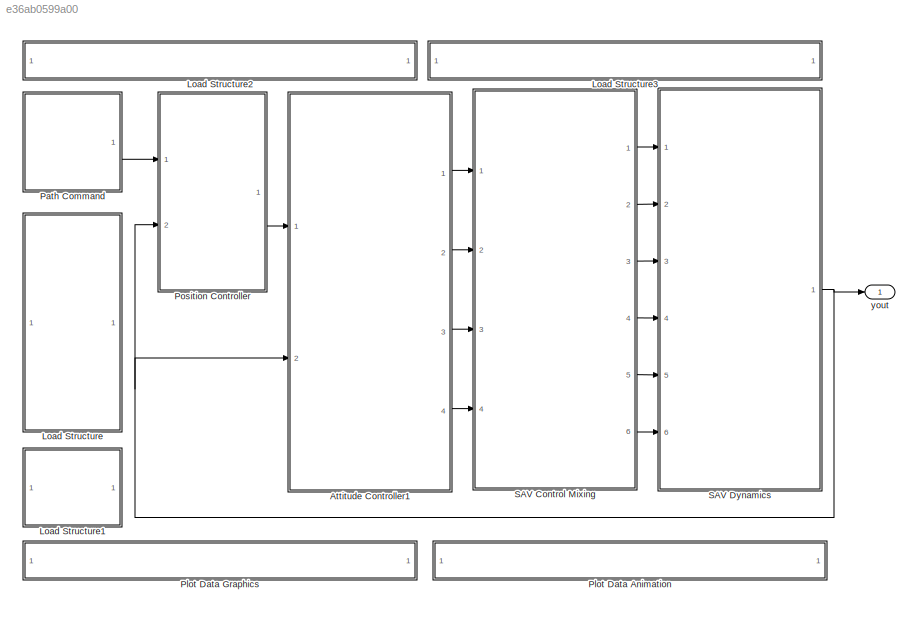
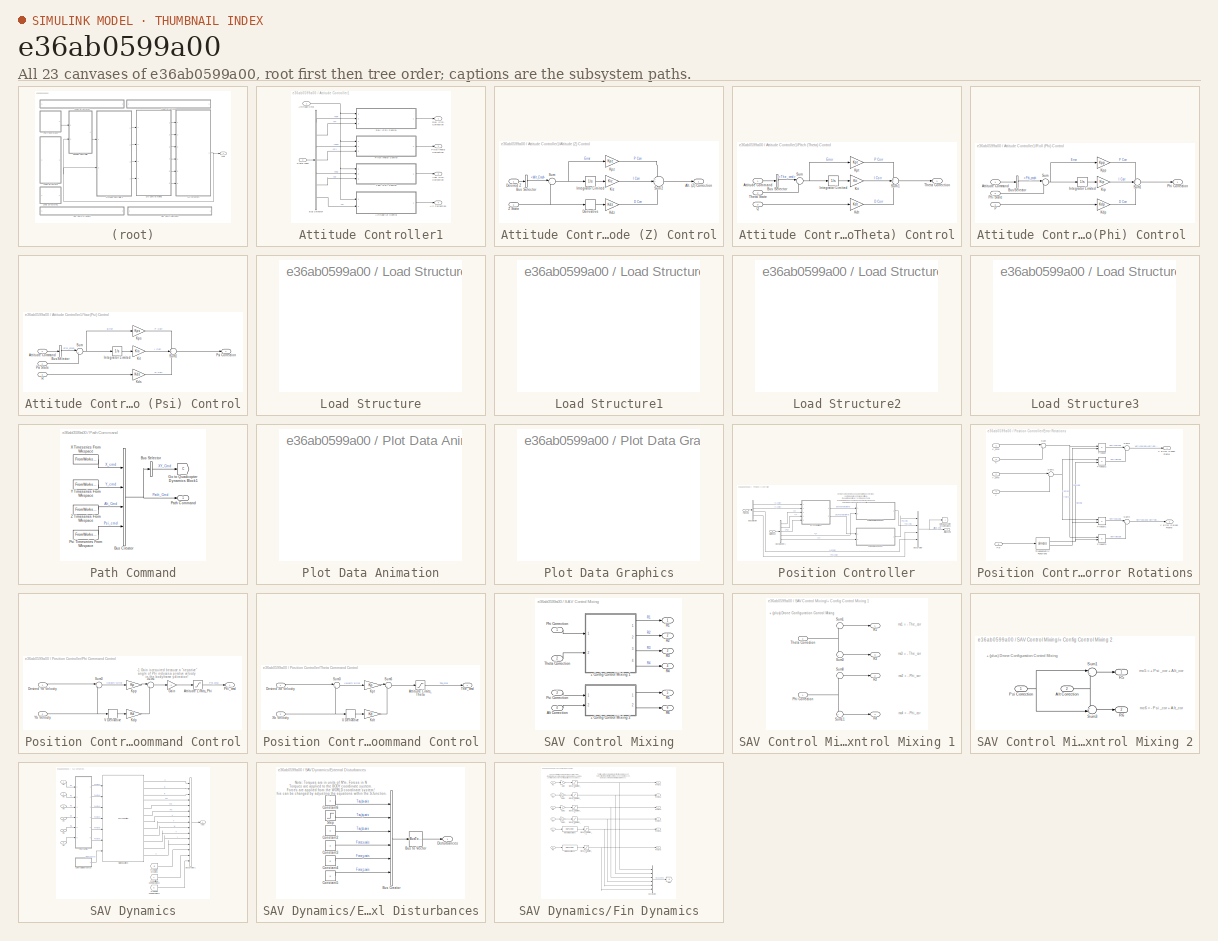
[diagram: thumbnail index - all 23 canvases of the model, root first then tree order]
MODEL slx_e36ab0599a00
KIND model
WORKSPACE source: MAT-file member
WORKSPACE MCOS: class17 (value not decoded)
BLOCK [SubSystem] Attitude Controller1
  Ports = [2, 4]
  RequestExecContextInheritance = off
BLOCK [Outport] Attitude Controller1/Alt Correction
  IconDisplay = Port number
  Port = 4
BLOCK [SubSystem] Attitude Controller1/Altitude (Z) Control
  Ports = [2, 1]
  RequestExecContextInheritance = off
BLOCK [Outport] Attitude Controller1/Altitude (Z) Control/Alt. (Z) Correction
  IconDisplay = Port number
BLOCK [BusSelector] Attitude Controller1/Altitude (Z) Control/Bus Selector
  OutputSignals = Alt_Cmd
  Ports = [1, 1]
BLOCK [Derivative] Attitude Controller1/Altitude (Z) Control/Derivative
BLOCK [Inport] Attitude Controller1/Altitude (Z) Control/Desired Z
  IconDisplay = Port number
BLOCK [Integrator] Attitude Controller1/Altitude (Z) Control/Integrator Limited
  LowerSaturationLimit = LSat
  Ports = [1, 1]
  UpperSaturationLimit = USat
BLOCK [Gain] Attitude Controller1/Altitude (Z) Control/Kdz
  Gain = Kdz
  OutDataTypeStr = Inherit: Inherit via internal rule
  ParamDataTypeStr = Inherit: Inherit via internal rule
  SaturateOnIntegerOverflow = off
BLOCK [Gain] Attitude Controller1/Altitude (Z) Control/Kiz
  Gain = Kiz
  OutDataTypeStr = Inherit: Inherit via internal rule
  ParamDataTypeStr = Inherit: Inherit via internal rule
  SaturateOnIntegerOverflow = off
BLOCK [Gain] Attitude Controller1/Altitude (Z) Control/Kpz
  Gain = Kpz
  OutDataTypeStr = Inherit: Inherit via internal rule
  ParamDataTypeStr = Inherit: Inherit via internal rule
  SaturateOnIntegerOverflow = off
BLOCK [Sum] Attitude Controller1/Altitude (Z) Control/Sum
  IconShape = round
  InputSameDT = off
  Inputs = |+-
  OutDataTypeStr = Inherit: Inherit via internal rule
  Ports = [2, 1]
  SaturateOnIntegerOverflow = off
BLOCK [Sum] Attitude Controller1/Altitude (Z) Control/Sum2
  IconShape = round
  InputSameDT = off
  Inputs = ++-
  OutDataTypeStr = Inherit: Inherit via internal rule
  Ports = [3, 1]
  SaturateOnIntegerOverflow = off
BLOCK [Inport] Attitude Controller1/Altitude (Z) Control/Z State
  IconDisplay = Port number
  Port = 2
BLOCK [Inport] Attitude Controller1/Attitude Cmd
  IconDisplay = Port number
BLOCK [BusSelector] Attitude Controller1/Bus Selector
  OutputSignals = Phi,P,The,Q,Psi,R,Z
  Ports = [1, 7]
BLOCK [SubSystem] Attitude Controller1/Pitch (Theta) Control
  Ports = [3, 1]
  RequestExecContextInheritance = off
BLOCK [Inport] Attitude Controller1/Pitch (Theta) Control/Attitude Command
  IconDisplay = Port number
BLOCK [BusSelector] Attitude Controller1/Pitch (Theta) Control/Bus Selector
  OutputSignals = The_cmd
  Ports = [1, 1]
BLOCK [Integrator] Attitude Controller1/Pitch (Theta) Control/Integrator Limited
  LowerSaturationLimit = LSat
  Ports = [1, 1]
  UpperSaturationLimit = USat
BLOCK [Gain] Attitude Controller1/Pitch (Theta) Control/Kdt
  Gain = Kdt
  OutDataTypeStr = Inherit: Inherit via internal rule
  ParamDataTypeStr = Inherit: Inherit via internal rule
  SaturateOnIntegerOverflow = off
BLOCK [Gain] Attitude Controller1/Pitch (Theta) Control/Kit
  Gain = Kit
  OutDataTypeStr = Inherit: Inherit via internal rule
  ParamDataTypeStr = Inherit: Inherit via internal rule
  SaturateOnIntegerOverflow = off
BLOCK [Gain] Attitude Controller1/Pitch (Theta) Control/Kpt
  Gain = Kpt
  OutDataTypeStr = Inherit: Inherit via internal rule
  ParamDataTypeStr = Inherit: Inherit via internal rule
  SaturateOnIntegerOverflow = off
BLOCK [Inport] Attitude Controller1/Pitch (Theta) Control/Q
  IconDisplay = Port number
  Port = 3
BLOCK [Sum] Attitude Controller1/Pitch (Theta) Control/Sum
  IconShape = round
  InputSameDT = off
  Inputs = |+-
  OutDataTypeStr = Inherit: Inherit via internal rule
  Ports = [2, 1]
  SaturateOnIntegerOverflow = off
BLOCK [Sum] Attitude Controller1/Pitch (Theta) Control/Sum1
  IconShape = round
  InputSameDT = off
  Inputs = ++-
  OutDataTypeStr = Inherit: Inherit via internal rule
  Ports = [3, 1]
  SaturateOnIntegerOverflow = off
BLOCK [Outport] Attitude Controller1/Pitch (Theta) Control/Theta Correction
  IconDisplay = Port number
BLOCK [Inport] Attitude Controller1/Pitch (Theta) Control/Theta State
  IconDisplay = Port number
  Port = 2
BLOCK [Outport] Attitude Controller1/Pitch (Theta) Correction
  IconDisplay = Port number
  Port = 2
BLOCK [SubSystem] Attitude Controller1/Roll (Phi) Control 
  Ports = [3, 1]
  RequestExecContextInheritance = off
BLOCK [Inport] Attitude Controller1/Roll (Phi) Control /Attitude Command 
  IconDisplay = Port number
BLOCK [BusSelector] Attitude Controller1/Roll (Phi) Control /Bus Selector
  OutputSignals = Phi_cmd
  Ports = [1, 1]
BLOCK [Integrator] Attitude Controller1/Roll (Phi) Control /Integrator Limited
  LowerSaturationLimit = LSat
  Ports = [1, 1]
  UpperSaturationLimit = USat
BLOCK [Gain] Attitude Controller1/Roll (Phi) Control /Kdp
  Gain = Kdp
  OutDataTypeStr = Inherit: Inherit via internal rule
  ParamDataTypeStr = Inherit: Inherit via internal rule
  SaturateOnIntegerOverflow = off
BLOCK [Gain] Attitude Controller1/Roll (Phi) Control /Kip
  Gain = Kip
  OutDataTypeStr = Inherit: Inherit via internal rule
  ParamDataTypeStr = Inherit: Inherit via internal rule
  SaturateOnIntegerOverflow = off
BLOCK [Gain] Attitude Controller1/Roll (Phi) Control /Kpp
  Gain = Kpp
  OutDataTypeStr = Inherit: Inherit via internal rule
  ParamDataTypeStr = Inherit: Inherit via internal rule
  SaturateOnIntegerOverflow = off
BLOCK [Inport] Attitude Controller1/Roll (Phi) Control /P
  IconDisplay = Port number
  Port = 3
BLOCK [Outport] Attitude Controller1/Roll (Phi) Control /Phi Correction
  IconDisplay = Port number
BLOCK [Inport] Attitude Controller1/Roll (Phi) Control /Phi State
  IconDisplay = Port number
  Port = 2
BLOCK [Sum] Attitude Controller1/Roll (Phi) Control /Sum
  IconShape = round
  InputSameDT = off
  Inputs = |+-
  OutDataTypeStr = Inherit: Inherit via internal rule
  Ports = [2, 1]
  SaturateOnIntegerOverflow = off
BLOCK [Sum] Attitude Controller1/Roll (Phi) Control /Sum1
  IconShape = round
  InputSameDT = off
  Inputs = ++-
  OutDataTypeStr = Inherit: Inherit via internal rule
  Ports = [3, 1]
  SaturateOnIntegerOverflow = off
BLOCK [Outport] Attitude Controller1/Roll (Phi) Correction
  IconDisplay = Port number
BLOCK [Inport] Attitude Controller1/State Input
  IconDisplay = Port number
  Port = 2
BLOCK [SubSystem] Attitude Controller1/Yaw (Psi) Control
  Ports = [3, 1]
  RequestExecContextInheritance = off
BLOCK [Inport] Attitude Controller1/Yaw (Psi) Control/Attitude Command
  IconDisplay = Port number
BLOCK [BusSelector] Attitude Controller1/Yaw (Psi) Control/Bus Selector
  OutputSignals = Psi_cmd
  Ports = [1, 1]
BLOCK [Integrator] Attitude Controller1/Yaw (Psi) Control/Integrator Limited
  LowerSaturationLimit = LSat
  Ports = [1, 1]
  UpperSaturationLimit = USat
BLOCK [Gain] Attitude Controller1/Yaw (Psi) Control/Kds
  Gain = Kds
  OutDataTypeStr = Inherit: Inherit via internal rule
  ParamDataTypeStr = Inherit: Inherit via internal rule
  SaturateOnIntegerOverflow = off
BLOCK [Gain] Attitude Controller1/Yaw (Psi) Control/Kit
  Gain = Kis
  OutDataTypeStr = Inherit: Inherit via internal rule
  ParamDataTypeStr = Inherit: Inherit via internal rule
  SaturateOnIntegerOverflow = off
BLOCK [Gain] Attitude Controller1/Yaw (Psi) Control/Kps
  Gain = Kps
  OutDataTypeStr = Inherit: Inherit via internal rule
  ParamDataTypeStr = Inherit: Inherit via internal rule
  SaturateOnIntegerOverflow = off
BLOCK [Outport] Attitude Controller1/Yaw (Psi) Control/Psi Correction
  IconDisplay = Port number
BLOCK [Inport] Attitude Controller1/Yaw (Psi) Control/Psi State
  IconDisplay = Port number
  Port = 2
BLOCK [Inport] Attitude Controller1/Yaw (Psi) Control/R
  IconDisplay = Port number
  Port = 3
BLOCK [Sum] Attitude Controller1/Yaw (Psi) Control/Sum
  IconShape = round
  InputSameDT = off
  Inputs = |+-
  OutDataTypeStr = Inherit: Inherit via internal rule
  Ports = [2, 1]
  SaturateOnIntegerOverflow = off
BLOCK [Sum] Attitude Controller1/Yaw (Psi) Control/Sum1
  IconShape = round
  InputSameDT = off
  Inputs = ++-
  OutDataTypeStr = Inherit: Inherit via internal rule
  Ports = [3, 1]
  SaturateOnIntegerOverflow = off
BLOCK [Outport] Attitude Controller1/Yaw (Psi) Correction
  IconDisplay = Port number
  Port = 3
BLOCK [SubSystem] Load Structure
  OpenFcn = uiopen('load')                                                        \nif ((exist('IC')==1) && (exist('quadModel')==1) && (exist('path')==1))\nset_param(bdroot, 'SimulationCommand', 'update')                      \nend
  Ports = []
  RequestExecContextInheritance = off
  ShowPortLabels = FromPortBlockName
BLOCK [SubSystem] Load Structure1
  OpenFcn = if (exist('IC')==1 && exist('quadModel')==1 && exist('yout') && exist('tout'))\nsaveSimResults()                                                              \nelse                                                                          \nmsgbox('No Data To Save!')                                                    \nend
  Ports = []
  RequestExecContextInheritance = off
  ShowPortLabels = FromPortBlockName
BLOCK [SubSystem] Load Structure2
  OpenFcn = if exist('GUI_Modeling') == 2,                                \nrun('GUI_Modeling')                                           \n                                                              \nelse                                                          \n                                                              \nmsgbox('The desired GUI must be first added to MATLABs path.')\n                      ...<+44ch>
  Ports = []
  RequestExecContextInheritance = off
  ShowPortLabels = none
BLOCK [SubSystem] Load Structure3
  OpenFcn = if exist('GUI_IC') == 2,                                      \nrun('GUI_IC')                                                 \n                                                              \nelse                                                          \n                                                              \nmsgbox('The desired GUI must be first added to MATLABs path.')\n                      ...<+44ch>
  Ports = []
  RequestExecContextInheritance = off
  ShowPortLabels = none
BLOCK [SubSystem] Path Command
  Ports = [0, 1]
  RequestExecContextInheritance = off
BLOCK [BusCreator] Path Command/Bus Creator
  DisplayOption = bar
  Ports = [4, 1]
BLOCK [BusSelector] Path Command/Bus Selector
  OutputAsBus = on
  OutputSignals = X_cmd,Y_cmd
  Ports = [1, 1]
BLOCK [Goto] Path Command/Go to Quadcopter Dynamics Block1
  GotoTag = C
  TagVisibility = global
BLOCK [Outport] Path Command/Path Command 
  IconDisplay = Port number
BLOCK [FromWorkspace] Path Command/Psi Timeseries From Wkspace
  OutputAfterFinalValue = Holding final value
  SampleTime = 0
  VariableName = path.psi
  ZeroCross = on
BLOCK [FromWorkspace] Path Command/X Timeseries From Wkspace
  OutputAfterFinalValue = Holding final value
  SampleTime = 0
  VariableName = path.x
  ZeroCross = on
BLOCK [FromWorkspace] Path Command/Y Timeseries From Wkspace
  OutputAfterFinalValue = Holding final value
  SampleTime = 0
  VariableName = path.y
  ZeroCross = on
BLOCK [FromWorkspace] Path Command/Z Timeseries From Wkspace
  OutputAfterFinalValue = Holding final value
  SampleTime = 0
  VariableName = path.z
  ZeroCross = on
BLOCK [SubSystem] Plot Data Animation
  OpenFcn = if exist('droneAnim4') == 2,                                                                                                                 \n    if exist('yout')                                                                                                                        \n	run('droneAnim4');                                                                                                  ...<+592ch>
  Ports = []
  RequestExecContextInheritance = off
  ShowPortLabels = FromPortBlockName
BLOCK [SubSystem] Plot Data Graphics
  OpenFcn = if exist('yout')                                            \nyout = evalin('base', 'yout');                              \ntout = evalin('base', 'tout');                              \ndronePlots(yout, tout)                                       \nelse                                                        \nmsgbox('Simulation must be run before data can be plotted.')\nend
  Ports = []
  RequestExecContextInheritance = off
  ShowPortLabels = FromPortBlockName
BLOCK [SubSystem] Position Controller
  Ports = [2, 1]
  RequestExecContextInheritance = off
BLOCK [Outport] Position Controller/Attitude Cmd
  IconDisplay = Port number
BLOCK [BusCreator] Position Controller/Bus Creator
  DisplayOption = bar
  Ports = [4, 1]
BLOCK [BusSelector] Position Controller/Bus Selector
  OutputSignals = X_cmd,Y_cmd,Alt_Cmd,Psi_cmd
  Ports = [1, 4]
BLOCK [BusSelector] Position Controller/Bus Selector1
  OutputSignals = X,Y,Psi,U,V
  Ports = [1, 5]
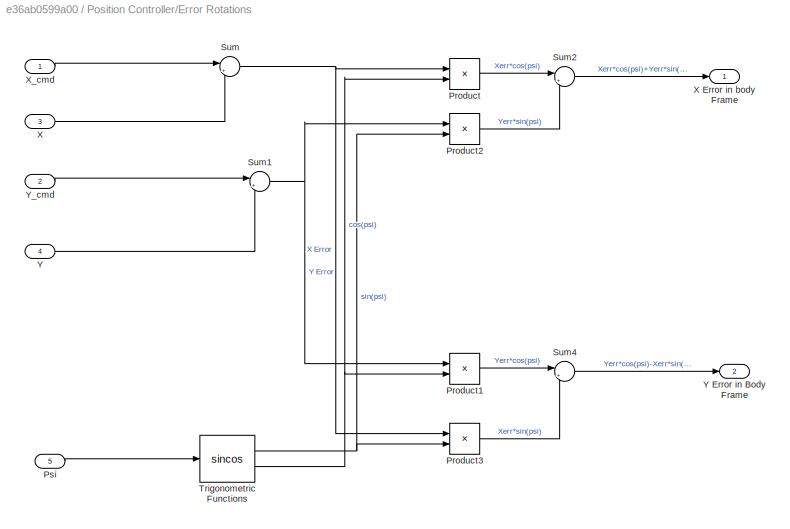
BLOCK [SubSystem] Position Controller/Error Rotations
  Ports = [5, 2]
  RequestExecContextInheritance = off
BLOCK [Product] Position Controller/Error Rotations/Product
  InputSameDT = off
  OutDataTypeStr = Inherit: Inherit via internal rule
  Ports = [2, 1]
  RndMeth = Floor
  SaturateOnIntegerOverflow = off
BLOCK [Product] Position Controller/Error Rotations/Product1
  InputSameDT = off
  OutDataTypeStr = Inherit: Inherit via internal rule
  Ports = [2, 1]
  RndMeth = Floor
  SaturateOnIntegerOverflow = off
BLOCK [Product] Position Controller/Error Rotations/Product2
  InputSameDT = off
  OutDataTypeStr = Inherit: Inherit via internal rule
  Ports = [2, 1]
  RndMeth = Floor
  SaturateOnIntegerOverflow = off
BLOCK [Product] Position Controller/Error Rotations/Product3
  InputSameDT = off
  OutDataTypeStr = Inherit: Inherit via internal rule
  Ports = [2, 1]
  RndMeth = Floor
  SaturateOnIntegerOverflow = off
BLOCK [Inport] Position Controller/Error Rotations/Psi
  IconDisplay = Port number
  Port = 5
BLOCK [Sum] Position Controller/Error Rotations/Sum
  IconShape = round
  InputSameDT = off
  Inputs = |+-
  OutDataTypeStr = Inherit: Inherit via internal rule
  Ports = [2, 1]
  SaturateOnIntegerOverflow = off
BLOCK [Sum] Position Controller/Error Rotations/Sum1
  IconShape = round
  InputSameDT = off
  Inputs = |+-
  OutDataTypeStr = Inherit: Inherit via internal rule
  Ports = [2, 1]
  SaturateOnIntegerOverflow = off
BLOCK [Sum] Position Controller/Error Rotations/Sum2
  IconShape = round
  InputSameDT = off
  Inputs = |++
  OutDataTypeStr = Inherit: Inherit via internal rule
  Ports = [2, 1]
  SaturateOnIntegerOverflow = off
BLOCK [Sum] Position Controller/Error Rotations/Sum4
  IconShape = round
  InputSameDT = off
  Inputs = |+-
  OutDataTypeStr = Inherit: Inherit via internal rule
  Ports = [2, 1]
  SaturateOnIntegerOverflow = off
BLOCK [Trigonometry] Position Controller/Error Rotations/Trigonometric Functions
  Operator = sincos
  Ports = [1, 2]
BLOCK [Inport] Position Controller/Error Rotations/X
  IconDisplay = Port number
  Port = 3
BLOCK [Outport] Position Controller/Error Rotations/X Error in body Frame
  IconDisplay = Port number
BLOCK [Inport] Position Controller/Error Rotations/X_cmd
  IconDisplay = Port number
BLOCK [Inport] Position Controller/Error Rotations/Y
  IconDisplay = Port number
  Port = 4
BLOCK [Outport] Position Controller/Error Rotations/Y Error in Body Frame
  IconDisplay = Port number
  Port = 2
BLOCK [Inport] Position Controller/Error Rotations/Y_cmd
  IconDisplay = Port number
  Port = 2
BLOCK [Goto] Position Controller/Goto Quadcopter Dynamics Block
  TagVisibility = global
BLOCK [Inport] Position Controller/Path Cmd
  IconDisplay = Port number
BLOCK [SubSystem] Position Controller/Phi Command Control
  Ports = [2, 1]
  RequestExecContextInheritance = off
BLOCK [Saturate] Position Controller/Phi Command Control/Attitude Limits_Phi
  InputPortMap = u0
  LowerLimit = -ASat
  Ports = [1, 1]
  UpperLimit = ASat
BLOCK [Inport] Position Controller/Phi Command Control/Desired Yb Velocity
  IconDisplay = Port number
BLOCK [Gain] Position Controller/Phi Command Control/Gain
  Gain = -1
  OutDataTypeStr = Inherit: Inherit via internal rule
  ParamDataTypeStr = Inherit: Inherit via internal rule
  SaturateOnIntegerOverflow = off
BLOCK [Gain] Position Controller/Phi Command Control/Kdp
  Gain = Kd
  OutDataTypeStr = Inherit: Inherit via internal rule
  ParamDataTypeStr = Inherit: Inherit via internal rule
  SaturateOnIntegerOverflow = off
BLOCK [Gain] Position Controller/Phi Command Control/Kpp
  Gain = Kp
  OutDataTypeStr = Inherit: Inherit via internal rule
  ParamDataTypeStr = Inherit: Inherit via internal rule
  SaturateOnIntegerOverflow = off
BLOCK [Outport] Position Controller/Phi Command Control/Phi_cmd
  IconDisplay = Port number
BLOCK [Sum] Position Controller/Phi Command Control/Sum3
  IconShape = round
  InputSameDT = off
  Inputs = |+-
  OutDataTypeStr = Inherit: Inherit via internal rule
  Ports = [2, 1]
  SaturateOnIntegerOverflow = off
BLOCK [Sum] Position Controller/Phi Command Control/Sum6
  IconShape = round
  InputSameDT = off
  Inputs = |+-
  OutDataTypeStr = Inherit: Inherit via internal rule
  Ports = [2, 1]
  SaturateOnIntegerOverflow = off
BLOCK [Derivative] Position Controller/Phi Command Control/V Derivative
BLOCK [Inport] Position Controller/Phi Command Control/Yb Velocity
  IconDisplay = Port number
  Port = 2
BLOCK [Inport] Position Controller/State Input
  IconDisplay = Port number
  Port = 2
BLOCK [SubSystem] Position Controller/Theta Command Control
  Ports = [2, 1]
  RequestExecContextInheritance = off
BLOCK [Saturate] Position Controller/Theta Command Control/Attitude Limits_Theta
  InputPortMap = u0
  LowerLimit = -ASat
  Ports = [1, 1]
  UpperLimit = ASat
BLOCK [Inport] Position Controller/Theta Command Control/Desired Xb Velocity
  IconDisplay = Port number
BLOCK [Gain] Position Controller/Theta Command Control/Kdt
  Gain = Kd
  OutDataTypeStr = Inherit: Inherit via internal rule
  ParamDataTypeStr = Inherit: Inherit via internal rule
  SaturateOnIntegerOverflow = off
BLOCK [Gain] Position Controller/Theta Command Control/Kpt
  Gain = Kp
  OutDataTypeStr = Inherit: Inherit via internal rule
  ParamDataTypeStr = Inherit: Inherit via internal rule
  SaturateOnIntegerOverflow = off
BLOCK [Sum] Position Controller/Theta Command Control/Sum3
  IconShape = round
  InputSameDT = off
  Inputs = |+-
  OutDataTypeStr = Inherit: Inherit via internal rule
  Ports = [2, 1]
  SaturateOnIntegerOverflow = off
BLOCK [Sum] Position Controller/Theta Command Control/Sum6
  IconShape = round
  InputSameDT = off
  Inputs = |+-
  OutDataTypeStr = Inherit: Inherit via internal rule
  Ports = [2, 1]
  SaturateOnIntegerOverflow = off
BLOCK [Outport] Position Controller/Theta Command Control/The_cmd
  IconDisplay = Port number
BLOCK [Derivative] Position Controller/Theta Command Control/U Derivative
BLOCK [Inport] Position Controller/Theta Command Control/Xb Velocity
  IconDisplay = Port number
  Port = 2
BLOCK [SubSystem] SAV Control Mixing
  Ports = [4, 6]
  RequestExecContextInheritance = off
BLOCK [SubSystem] SAV Control Mixing/+ Config Control Mixing 1
  Ports = [2, 4]
  RequestExecContextInheritance = off
BLOCK [Inport] SAV Control Mixing/+ Config Control Mixing 1/Phi Correction
  IconDisplay = Port number
BLOCK [Outport] SAV Control Mixing/+ Config Control Mixing 1/R1
  IconDisplay = Port number
BLOCK [Outport] SAV Control Mixing/+ Config Control Mixing 1/R2
  IconDisplay = Port number
  Port = 2
BLOCK [Outport] SAV Control Mixing/+ Config Control Mixing 1/R3
  IconDisplay = Port number
  Port = 3
BLOCK [Outport] SAV Control Mixing/+ Config Control Mixing 1/R4
  IconDisplay = Port number
  Port = 4
BLOCK [Sum] SAV Control Mixing/+ Config Control Mixing 1/Sum1
  IconShape = round
  InputSameDT = off
  Inputs = |-
  OutDataTypeStr = Inherit: Inherit via internal rule
  Ports = [1, 1]
  SaturateOnIntegerOverflow = off
BLOCK [Sum] SAV Control Mixing/+ Config Control Mixing 1/Sum11
  IconShape = round
  InputSameDT = off
  Inputs = -|
  OutDataTypeStr = Inherit: Inherit via internal rule
  Ports = [1, 1]
  SaturateOnIntegerOverflow = off
BLOCK [Sum] SAV Control Mixing/+ Config Control Mixing 1/Sum3
  IconShape = round
  InputSameDT = off
  Inputs = -|
  OutDataTypeStr = Inherit: Inherit via internal rule
  Ports = [1, 1]
  SaturateOnIntegerOverflow = off
BLOCK [Sum] SAV Control Mixing/+ Config Control Mixing 1/Sum8
  IconShape = round
  InputSameDT = off
  Inputs = |-
  OutDataTypeStr = Inherit: Inherit via internal rule
  Ports = [1, 1]
  SaturateOnIntegerOverflow = off
BLOCK [Inport] SAV Control Mixing/+ Config Control Mixing 1/Theta Correction
  IconDisplay = Port number
  Port = 2
BLOCK [SubSystem] SAV Control Mixing/+ Config Control Mixing 2
  Ports = [2, 2]
  RequestExecContextInheritance = off
BLOCK [Inport] SAV Control Mixing/+ Config Control Mixing 2/Alt Correction
  IconDisplay = Port number
  Port = 2
BLOCK [Inport] SAV Control Mixing/+ Config Control Mixing 2/Psi Correction
  IconDisplay = Port number
BLOCK [Outport] SAV Control Mixing/+ Config Control Mixing 2/R5
  IconDisplay = Port number
BLOCK [Outport] SAV Control Mixing/+ Config Control Mixing 2/R6
  IconDisplay = Port number
  Port = 2
BLOCK [Sum] SAV Control Mixing/+ Config Control Mixing 2/Sum1
  IconShape = round
  InputSameDT = off
  Inputs = |++
  OutDataTypeStr = Inherit: Inherit via internal rule
  Ports = [2, 1]
  SaturateOnIntegerOverflow = off
BLOCK [Sum] SAV Control Mixing/+ Config Control Mixing 2/Sum3
  IconShape = round
  InputSameDT = off
  Inputs = +-|
  OutDataTypeStr = Inherit: Inherit via internal rule
  Ports = [2, 1]
  SaturateOnIntegerOverflow = off
BLOCK [Inport] SAV Control Mixing/Alt Correction
  IconDisplay = Port number
  Port = 4
BLOCK [Inport] SAV Control Mixing/Phi Correction
  IconDisplay = Port number
BLOCK [Inport] SAV Control Mixing/Psi Correction
  IconDisplay = Port number
  Port = 3
BLOCK [Outport] SAV Control Mixing/R1
  IconDisplay = Port number
BLOCK [Outport] SAV Control Mixing/R2
  IconDisplay = Port number
  Port = 2
BLOCK [Outport] SAV Control Mixing/R3
  IconDisplay = Port number
  Port = 3
BLOCK [Outport] SAV Control Mixing/R4
  IconDisplay = Port number
  Port = 4
BLOCK [Outport] SAV Control Mixing/R5
  IconDisplay = Port number
  Port = 5
BLOCK [Outport] SAV Control Mixing/R6
  IconDisplay = Port number
  Port = 6
BLOCK [Inport] SAV Control Mixing/Theta Correction
  IconDisplay = Port number
  Port = 2
BLOCK [SubSystem] SAV Dynamics
  Ports = [6, 1]
  RequestExecContextInheritance = off
BLOCK [BusCreator] SAV Dynamics/Bus Creator1
  DisplayOption = bar
  Inputs = 'P','Q','R','Phi','The','Psi','U','V','W','X','Y','Z','mc and RPM','Attitude_Cmd','XY_Cmd'
  Ports = [15, 1]
BLOCK [SubSystem] SAV Dynamics/External Disturbances
  Ports = [0, 1]
  RequestExecContextInheritance = off
BLOCK [BusCreator] SAV Dynamics/External Disturbances/Bus Creator
  DisplayOption = bar
  Inputs = 6
  Ports = [6, 1]
BLOCK [BusToVector] SAV Dynamics/External Disturbances/Bus to Vector
BLOCK [Constant] SAV Dynamics/External Disturbances/Constant2
  Value = 0
BLOCK [Constant] SAV Dynamics/External Disturbances/Constant3
  Value = 0
BLOCK [Constant] SAV Dynamics/External Disturbances/Constant4
  Value = 0
BLOCK [Constant] SAV Dynamics/External Disturbances/Constant5
  Value = 0
BLOCK [Constant] SAV Dynamics/External Disturbances/Constant6
  Value = 0
BLOCK [Outport] SAV Dynamics/External Disturbances/Disturbances 
  IconDisplay = Port number
BLOCK [Step] SAV Dynamics/External Disturbances/Step
  After = 0
  SampleTime = 0
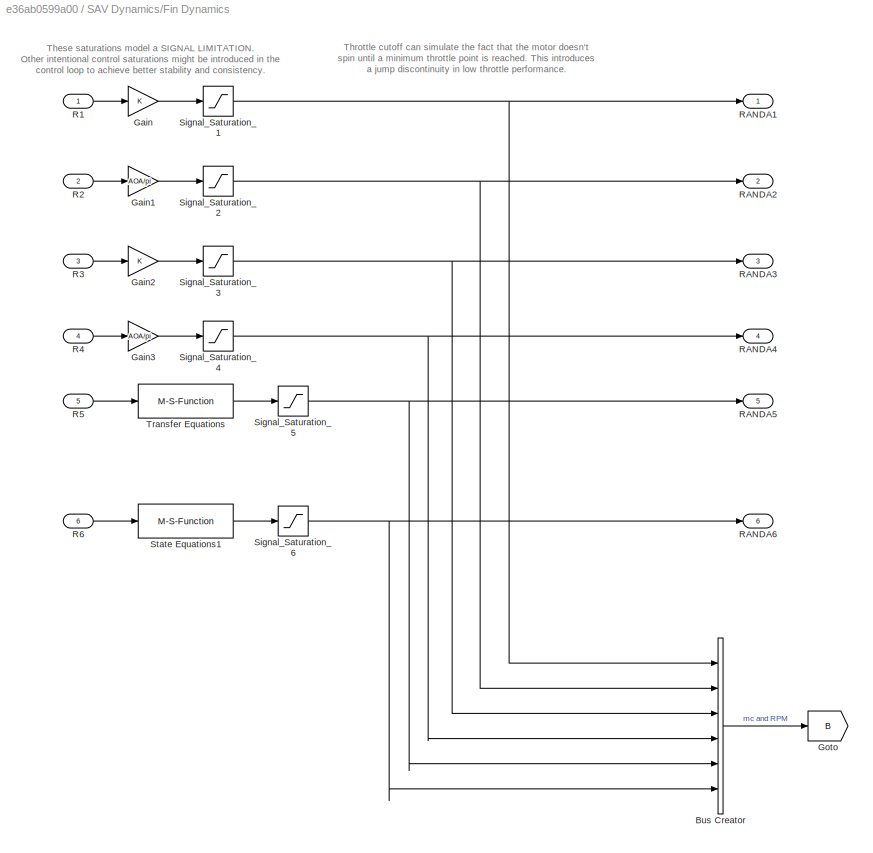
BLOCK [SubSystem] SAV Dynamics/Fin Dynamics
  Ports = [6, 6]
  RequestExecContextInheritance = off
BLOCK [BusCreator] SAV Dynamics/Fin Dynamics/Bus Creator
  DisplayOption = bar
  Inputs = 6
  Ports = [6, 1]
BLOCK [Gain] SAV Dynamics/Fin Dynamics/Gain
  OutDataTypeStr = Inherit: Inherit via internal rule
  ParamDataTypeStr = Inherit: Inherit via internal rule
  SaturateOnIntegerOverflow = off
BLOCK [Gain] SAV Dynamics/Fin Dynamics/Gain1
  Gain = AOA/pi
  OutDataTypeStr = Inherit: Inherit via internal rule
  ParamDataTypeStr = Inherit: Inherit via internal rule
  SaturateOnIntegerOverflow = off
BLOCK [Gain] SAV Dynamics/Fin Dynamics/Gain2
  OutDataTypeStr = Inherit: Inherit via internal rule
  ParamDataTypeStr = Inherit: Inherit via internal rule
  SaturateOnIntegerOverflow = off
BLOCK [Gain] SAV Dynamics/Fin Dynamics/Gain3
  Gain = AOA/pi
  OutDataTypeStr = Inherit: Inherit via internal rule
  ParamDataTypeStr = Inherit: Inherit via internal rule
  SaturateOnIntegerOverflow = off
BLOCK [Goto] SAV Dynamics/Fin Dynamics/Goto
  GotoTag = B
  TagVisibility = global
BLOCK [Inport] SAV Dynamics/Fin Dynamics/R1
  IconDisplay = Port number
BLOCK [Inport] SAV Dynamics/Fin Dynamics/R2
  IconDisplay = Port number
  Port = 2
BLOCK [Inport] SAV Dynamics/Fin Dynamics/R3
  IconDisplay = Port number
  Port = 3
BLOCK [Inport] SAV Dynamics/Fin Dynamics/R4
  IconDisplay = Port number
  Port = 4
BLOCK [Inport] SAV Dynamics/Fin Dynamics/R5
  IconDisplay = Port number
  Port = 5
BLOCK [Inport] SAV Dynamics/Fin Dynamics/R6
  IconDisplay = Port number
  Port = 6
BLOCK [Outport] SAV Dynamics/Fin Dynamics/RANDA1
  IconDisplay = Port number
BLOCK [Outport] SAV Dynamics/Fin Dynamics/RANDA2
  IconDisplay = Port number
  Port = 2
BLOCK [Outport] SAV Dynamics/Fin Dynamics/RANDA3
  IconDisplay = Port number
  Port = 3
BLOCK [Outport] SAV Dynamics/Fin Dynamics/RANDA4
  IconDisplay = Port number
  Port = 4
BLOCK [Outport] SAV Dynamics/Fin Dynamics/RANDA5
  IconDisplay = Port number
  Port = 5
BLOCK [Outport] SAV Dynamics/Fin Dynamics/RANDA6
  IconDisplay = Port number
  Port = 6
BLOCK [Saturate] SAV Dynamics/Fin Dynamics/Signal_Saturation_1
  InputPortMap = u0
  LowerLimit = -AOA
  Ports = [1, 1]
  UpperLimit = AOA
BLOCK [Saturate] SAV Dynamics/Fin Dynamics/Signal_Saturation_2
  InputPortMap = u0
  LowerLimit = -AOA
  Ports = [1, 1]
  UpperLimit = AOA
BLOCK [Saturate] SAV Dynamics/Fin Dynamics/Signal_Saturation_3
  InputPortMap = u0
  LowerLimit = -AOA
  Ports = [1, 1]
  UpperLimit = AOA
BLOCK [Saturate] SAV Dynamics/Fin Dynamics/Signal_Saturation_4
  InputPortMap = u0
  LowerLimit = -AOA
  Ports = [1, 1]
  UpperLimit = AOA
BLOCK [Saturate] SAV Dynamics/Fin Dynamics/Signal_Saturation_5
  InputPortMap = u0
  LowerLimit = 50
  Ports = [1, 1]
  UpperLimit = 100
BLOCK [Saturate] SAV Dynamics/Fin Dynamics/Signal_Saturation_6
  InputPortMap = u0
  LowerLimit = 50
  Ports = [1, 1]
  UpperLimit = 100
BLOCK [M-S-Function] SAV Dynamics/Fin Dynamics/State Equations1
  FunctionName = Hovering_RPM
  Parameters = droneModel
  Ports = [1, 1]
BLOCK [M-S-Function] SAV Dynamics/Fin Dynamics/Transfer Equations
  FunctionName = Hovering_RPM
  Parameters = droneModel
  Ports = [1, 1]
BLOCK [From] SAV Dynamics/From Attitude Command Block
  TagVisibility = global
BLOCK [From] SAV Dynamics/From Motor Dynamics
  GotoTag = B
  TagVisibility = global
BLOCK [From] SAV Dynamics/From Path Command Block
  GotoTag = C
  TagVisibility = global
BLOCK [Inport] SAV Dynamics/R1
  IconDisplay = Port number
BLOCK [Inport] SAV Dynamics/R2
  IconDisplay = Port number
  Port = 2
BLOCK [Inport] SAV Dynamics/R3
  IconDisplay = Port number
  Port = 3
BLOCK [Inport] SAV Dynamics/R4
  IconDisplay = Port number
  Port = 4
BLOCK [Inport] SAV Dynamics/R5
  IconDisplay = Port number
  Port = 5
BLOCK [Inport] SAV Dynamics/R6
  IconDisplay = Port number
  Port = 6
BLOCK [M-S-Function] SAV Dynamics/State Equations
  FunctionName = droneDynamicsSFunction
  Parameters = droneModel, IC
  Ports = [7, 12]
BLOCK [Outport] SAV Dynamics/yout
  IconDisplay = Port number
BLOCK [Outport] yout
  IconDisplay = Port number
ANNOTATION Position Controller: Inertial-frame velocity is used as the state to be controlled, (as this is what is controlled by attitude) thus we find position error in the body frame and map this to a body frame desired velocity. This desired velocity is then mapped to a desired attitude.
ANNOTATION Position Controller/Phi Command Control: -1 Gain is required because a "negative" angle of Phi induces a positive velocity in the body frame y direction!
ANNOTATION SAV Control Mixing/+ Config Control Mixing 1: + (plus) Drone Configuration Control Mixing
ANNOTATION SAV Control Mixing/+ Config Control Mixing 1: mc1 = - The_cor
ANNOTATION SAV Control Mixing/+ Config Control Mixing 1: mc2 = - Phi_cor
ANNOTATION SAV Control Mixing/+ Config Control Mixing 1: mc3 = - The_cor
ANNOTATION SAV Control Mixing/+ Config Control Mixing 1: mc4 = - Phi_cor
ANNOTATION SAV Control Mixing/+ Config Control Mixing 2: + (plus) Drone Configuration Control Mixing
ANNOTATION SAV Control Mixing/+ Config Control Mixing 2: mc5 = + Psi _cor + Alt_cor
ANNOTATION SAV Control Mixing/+ Config Control Mixing 2: mc6 = - Psi _cor + Alt_cor
ANNOTATION SAV Dynamics/External Disturbances: Note: Torques are in units of N*m, Forces in N Torques are applied to the BODY coordinate system. Forces are applied from the WORLD coordinate system! This can be changed by adjusting the equations within the S-function.
ANNOTATION SAV Dynamics/Fin Dynamics: These saturations model a SIGNAL LIMITATION. Other intentional control saturations might be introduced in the control loop to achieve better stability and consistency.
ANNOTATION SAV Dynamics/Fin Dynamics: Throttle cutoff can simulate the fact that the motor doesn't spin until a minimum throttle point is reached. This introduces a jump discontinuity in low throttle performance.
LINE Attitude Controller1/Altitude (Z) Control/Bus Selector:1 -> Attitude Controller1/Altitude (Z) Control/Sum:1
LINE Attitude Controller1/Altitude (Z) Control/Derivative:1 -> Attitude Controller1/Altitude (Z) Control/Kdz:1
LINE Attitude Controller1/Altitude (Z) Control/Desired Z:1 -> Attitude Controller1/Altitude (Z) Control/Bus Selector:1
LINE Attitude Controller1/Altitude (Z) Control/Integrator Limited:1 -> Attitude Controller1/Altitude (Z) Control/Kiz:1
LINE Attitude Controller1/Altitude (Z) Control/Kdz:1 -> Attitude Controller1/Altitude (Z) Control/Sum2:3
LINE Attitude Controller1/Altitude (Z) Control/Kiz:1 -> Attitude Controller1/Altitude (Z) Control/Sum2:2
LINE Attitude Controller1/Altitude (Z) Control/Kpz:1 -> Attitude Controller1/Altitude (Z) Control/Sum2:1
LINE Attitude Controller1/Altitude (Z) Control/Sum2:1 -> Attitude Controller1/Altitude (Z) Control/Alt. (Z) Correction:1
NET Attitude Controller1/Altitude (Z) Control/Sum:1 -> Attitude Controller1/Altitude (Z) Control/Integrator Limited:1, Attitude Controller1/Altitude (Z) Control/Kpz:1
NET Attitude Controller1/Altitude (Z) Control/Z State:1 -> Attitude Controller1/Altitude (Z) Control/Derivative:1, Attitude Controller1/Altitude (Z) Control/Sum:2
LINE Attitude Controller1/Altitude (Z) Control:1 -> Attitude Controller1/Alt Correction:1
NET Attitude Controller1/Attitude Cmd:1 -> Attitude Controller1/Altitude (Z) Control:1, Attitude Controller1/Pitch (Theta) Control:1, Attitude Controller1/Roll (Phi) Control :1, Attitude Controller1/Yaw (Psi) Control:1
LINE Attitude Controller1/Bus Selector:1 -> Attitude Controller1/Roll (Phi) Control :2
LINE Attitude Controller1/Bus Selector:2 -> Attitude Controller1/Roll (Phi) Control :3
LINE Attitude Controller1/Bus Selector:3 -> Attitude Controller1/Pitch (Theta) Control:2
LINE Attitude Controller1/Bus Selector:4 -> Attitude Controller1/Pitch (Theta) Control:3
LINE Attitude Controller1/Bus Selector:5 -> Attitude Controller1/Yaw (Psi) Control:2
LINE Attitude Controller1/Bus Selector:6 -> Attitude Controller1/Yaw (Psi) Control:3
LINE Attitude Controller1/Bus Selector:7 -> Attitude Controller1/Altitude (Z) Control:2
LINE Attitude Controller1/Pitch (Theta) Control/Attitude Command:1 -> Attitude Controller1/Pitch (Theta) Control/Bus Selector:1
LINE Attitude Controller1/Pitch (Theta) Control/Bus Selector:1 -> Attitude Controller1/Pitch (Theta) Control/Sum:1
LINE Attitude Controller1/Pitch (Theta) Control/Integrator Limited:1 -> Attitude Controller1/Pitch (Theta) Control/Kit:1
LINE Attitude Controller1/Pitch (Theta) Control/Kdt:1 -> Attitude Controller1/Pitch (Theta) Control/Sum1:3
LINE Attitude Controller1/Pitch (Theta) Control/Kit:1 -> Attitude Controller1/Pitch (Theta) Control/Sum1:2
LINE Attitude Controller1/Pitch (Theta) Control/Kpt:1 -> Attitude Controller1/Pitch (Theta) Control/Sum1:1
LINE Attitude Controller1/Pitch (Theta) Control/Q:1 -> Attitude Controller1/Pitch (Theta) Control/Kdt:1
LINE Attitude Controller1/Pitch (Theta) Control/Sum1:1 -> Attitude Controller1/Pitch (Theta) Control/Theta Correction:1
NET Attitude Controller1/Pitch (Theta) Control/Sum:1 -> Attitude Controller1/Pitch (Theta) Control/Integrator Limited:1, Attitude Controller1/Pitch (Theta) Control/Kpt:1
LINE Attitude Controller1/Pitch (Theta) Control/Theta State:1 -> Attitude Controller1/Pitch (Theta) Control/Sum:2
LINE Attitude Controller1/Pitch (Theta) Control:1 -> Attitude Controller1/Pitch (Theta) Correction:1
LINE Attitude Controller1/Roll (Phi) Control /Attitude Command :1 -> Attitude Controller1/Roll (Phi) Control /Bus Selector:1
LINE Attitude Controller1/Roll (Phi) Control /Bus Selector:1 -> Attitude Controller1/Roll (Phi) Control /Sum:1
LINE Attitude Controller1/Roll (Phi) Control /Integrator Limited:1 -> Attitude Controller1/Roll (Phi) Control /Kip:1
LINE Attitude Controller1/Roll (Phi) Control /Kdp:1 -> Attitude Controller1/Roll (Phi) Control /Sum1:3
LINE Attitude Controller1/Roll (Phi) Control /Kip:1 -> Attitude Controller1/Roll (Phi) Control /Sum1:2
LINE Attitude Controller1/Roll (Phi) Control /Kpp:1 -> Attitude Controller1/Roll (Phi) Control /Sum1:1
LINE Attitude Controller1/Roll (Phi) Control /P:1 -> Attitude Controller1/Roll (Phi) Control /Kdp:1
LINE Attitude Controller1/Roll (Phi) Control /Phi State:1 -> Attitude Controller1/Roll (Phi) Control /Sum:2
LINE Attitude Controller1/Roll (Phi) Control /Sum1:1 -> Attitude Controller1/Roll (Phi) Control /Phi Correction:1
NET Attitude Controller1/Roll (Phi) Control /Sum:1 -> Attitude Controller1/Roll (Phi) Control /Integrator Limited:1, Attitude Controller1/Roll (Phi) Control /Kpp:1
LINE Attitude Controller1/Roll (Phi) Control :1 -> Attitude Controller1/Roll (Phi) Correction:1
LINE Attitude Controller1/State Input:1 -> Attitude Controller1/Bus Selector:1
LINE Attitude Controller1/Yaw (Psi) Control/Attitude Command:1 -> Attitude Controller1/Yaw (Psi) Control/Bus Selector:1
LINE Attitude Controller1/Yaw (Psi) Control/Bus Selector:1 -> Attitude Controller1/Yaw (Psi) Control/Sum:1
LINE Attitude Controller1/Yaw (Psi) Control/Integrator Limited:1 -> Attitude Controller1/Yaw (Psi) Control/Kit:1
LINE Attitude Controller1/Yaw (Psi) Control/Kds:1 -> Attitude Controller1/Yaw (Psi) Control/Sum1:3
LINE Attitude Controller1/Yaw (Psi) Control/Kit:1 -> Attitude Controller1/Yaw (Psi) Control/Sum1:2
LINE Attitude Controller1/Yaw (Psi) Control/Kps:1 -> Attitude Controller1/Yaw (Psi) Control/Sum1:1
LINE Attitude Controller1/Yaw (Psi) Control/Psi State:1 -> Attitude Controller1/Yaw (Psi) Control/Sum:2
LINE Attitude Controller1/Yaw (Psi) Control/R:1 -> Attitude Controller1/Yaw (Psi) Control/Kds:1
LINE Attitude Controller1/Yaw (Psi) Control/Sum1:1 -> Attitude Controller1/Yaw (Psi) Control/Psi Correction:1
NET Attitude Controller1/Yaw (Psi) Control/Sum:1 -> Attitude Controller1/Yaw (Psi) Control/Integrator Limited:1, Attitude Controller1/Yaw (Psi) Control/Kps:1
LINE Attitude Controller1/Yaw (Psi) Control:1 -> Attitude Controller1/Yaw (Psi) Correction:1
LINE Attitude Controller1:1 -> SAV Control Mixing:1
LINE Attitude Controller1:2 -> SAV Control Mixing:2
LINE Attitude Controller1:3 -> SAV Control Mixing:3
LINE Attitude Controller1:4 -> SAV Control Mixing:4
NET Path Command/Bus Creator:1 -> Path Command/Bus Selector:1, Path Command/Path Command :1
LINE Path Command/Bus Selector:1 -> Path Command/Go to Quadcopter Dynamics Block1:1
LINE Path Command/Psi Timeseries From Wkspace:1 -> Path Command/Bus Creator:4
LINE Path Command/X Timeseries From Wkspace:1 -> Path Command/Bus Creator:1
LINE Path Command/Y Timeseries From Wkspace:1 -> Path Command/Bus Creator:2
LINE Path Command/Z Timeseries From Wkspace:1 -> Path Command/Bus Creator:3
LINE Path Command:1 -> Position Controller:1
NET Position Controller/Bus Creator:1 -> Position Controller/Attitude Cmd:1, Position Controller/Goto Quadcopter Dynamics Block:1
LINE Position Controller/Bus Selector1:1 -> Position Controller/Error Rotations:3
LINE Position Controller/Bus Selector1:2 -> Position Controller/Error Rotations:4
LINE Position Controller/Bus Selector1:3 -> Position Controller/Error Rotations:5
LINE Position Controller/Bus Selector1:4 -> Position Controller/Theta Command Control:2
LINE Position Controller/Bus Selector1:5 -> Position Controller/Phi Command Control:2
LINE Position Controller/Bus Selector:1 -> Position Controller/Error Rotations:1
LINE Position Controller/Bus Selector:2 -> Position Controller/Error Rotations:2
LINE Position Controller/Bus Selector:3 -> Position Controller/Bus Creator:4
LINE Position Controller/Bus Selector:4 -> Position Controller/Bus Creator:3
LINE Position Controller/Error Rotations/Product1:1 -> Position Controller/Error Rotations/Sum4:1
LINE Position Controller/Error Rotations/Product2:1 -> Position Controller/Error Rotations/Sum2:2
LINE Position Controller/Error Rotations/Product3:1 -> Position Controller/Error Rotations/Sum4:2
LINE Position Controller/Error Rotations/Product:1 -> Position Controller/Error Rotations/Sum2:1
LINE Position Controller/Error Rotations/Psi:1 -> Position Controller/Error Rotations/Trigonometric Functions:1
NET Position Controller/Error Rotations/Sum1:1 -> Position Controller/Error Rotations/Product1:1, Position Controller/Error Rotations/Product2:1
LINE Position Controller/Error Rotations/Sum2:1 -> Position Controller/Error Rotations/X Error in body Frame:1
LINE Position Controller/Error Rotations/Sum4:1 -> Position Controller/Error Rotations/Y Error in Body Frame:1
NET Position Controller/Error Rotations/Sum:1 -> Position Controller/Error Rotations/Product3:1, Position Controller/Error Rotations/Product:1
NET Position Controller/Error Rotations/Trigonometric Functions:1 -> Position Controller/Error Rotations/Product2:2, Position Controller/Error Rotations/Product3:2
NET Position Controller/Error Rotations/Trigonometric Functions:2 -> Position Controller/Error Rotations/Product1:2, Position Controller/Error Rotations/Product:2
LINE Position Controller/Error Rotations/X:1 -> Position Controller/Error Rotations/Sum:2
LINE Position Controller/Error Rotations/X_cmd:1 -> Position Controller/Error Rotations/Sum:1
LINE Position Controller/Error Rotations/Y:1 -> Position Controller/Error Rotations/Sum1:2
LINE Position Controller/Error Rotations/Y_cmd:1 -> Position Controller/Error Rotations/Sum1:1
LINE Position Controller/Error Rotations:1 -> Position Controller/Theta Command Control:1
LINE Position Controller/Error Rotations:2 -> Position Controller/Phi Command Control:1
LINE Position Controller/Path Cmd:1 -> Position Controller/Bus Selector:1
LINE Position Controller/Phi Command Control/Attitude Limits_Phi:1 -> Position Controller/Phi Command Control/Phi_cmd:1
LINE Position Controller/Phi Command Control/Desired Yb Velocity:1 -> Position Controller/Phi Command Control/Sum3:1
LINE Position Controller/Phi Command Control/Gain:1 -> Position Controller/Phi Command Control/Attitude Limits_Phi:1
LINE Position Controller/Phi Command Control/Kdp:1 -> Position Controller/Phi Command Control/Sum6:2
LINE Position Controller/Phi Command Control/Kpp:1 -> Position Controller/Phi Command Control/Sum6:1
LINE Position Controller/Phi Command Control/Sum3:1 -> Position Controller/Phi Command Control/Kpp:1
LINE Position Controller/Phi Command Control/Sum6:1 -> Position Controller/Phi Command Control/Gain:1
LINE Position Controller/Phi Command Control/V Derivative:1 -> Position Controller/Phi Command Control/Kdp:1
NET Position Controller/Phi Command Control/Yb Velocity:1 -> Position Controller/Phi Command Control/Sum3:2, Position Controller/Phi Command Control/V Derivative:1
LINE Position Controller/Phi Command Control:1 -> Position Controller/Bus Creator:1
LINE Position Controller/State Input:1 -> Position Controller/Bus Selector1:1
LINE Position Controller/Theta Command Control/Attitude Limits_Theta:1 -> Position Controller/Theta Command Control/The_cmd:1
LINE Position Controller/Theta Command Control/Desired Xb Velocity:1 -> Position Controller/Theta Command Control/Sum3:1
LINE Position Controller/Theta Command Control/Kdt:1 -> Position Controller/Theta Command Control/Sum6:2
LINE Position Controller/Theta Command Control/Kpt:1 -> Position Controller/Theta Command Control/Sum6:1
LINE Position Controller/Theta Command Control/Sum3:1 -> Position Controller/Theta Command Control/Kpt:1
LINE Position Controller/Theta Command Control/Sum6:1 -> Position Controller/Theta Command Control/Attitude Limits_Theta:1
LINE Position Controller/Theta Command Control/U Derivative:1 -> Position Controller/Theta Command Control/Kdt:1
NET Position Controller/Theta Command Control/Xb Velocity:1 -> Position Controller/Theta Command Control/Sum3:2, Position Controller/Theta Command Control/U Derivative:1
LINE Position Controller/Theta Command Control:1 -> Position Controller/Bus Creator:2
LINE Position Controller:1 -> Attitude Controller1:1
NET SAV Control Mixing/+ Config Control Mixing 1/Phi Correction:1 -> SAV Control Mixing/+ Config Control Mixing 1/Sum11:1, SAV Control Mixing/+ Config Control Mixing 1/Sum8:1
LINE SAV Control Mixing/+ Config Control Mixing 1/Sum11:1 -> SAV Control Mixing/+ Config Control Mixing 1/R4:1
LINE SAV Control Mixing/+ Config Control Mixing 1/Sum1:1 -> SAV Control Mixing/+ Config Control Mixing 1/R1:1
LINE SAV Control Mixing/+ Config Control Mixing 1/Sum3:1 -> SAV Control Mixing/+ Config Control Mixing 1/R3:1
LINE SAV Control Mixing/+ Config Control Mixing 1/Sum8:1 -> SAV Control Mixing/+ Config Control Mixing 1/R2:1
NET SAV Control Mixing/+ Config Control Mixing 1/Theta Correction:1 -> SAV Control Mixing/+ Config Control Mixing 1/Sum1:1, SAV Control Mixing/+ Config Control Mixing 1/Sum3:1
LINE SAV Control Mixing/+ Config Control Mixing 1:1 -> SAV Control Mixing/R1:1
LINE SAV Control Mixing/+ Config Control Mixing 1:2 -> SAV Control Mixing/R2:1
LINE SAV Control Mixing/+ Config Control Mixing 1:3 -> SAV Control Mixing/R3:1
LINE SAV Control Mixing/+ Config Control Mixing 1:4 -> SAV Control Mixing/R4:1
NET SAV Control Mixing/+ Config Control Mixing 2/Alt Correction:1 -> SAV Control Mixing/+ Config Control Mixing 2/Sum1:2, SAV Control Mixing/+ Config Control Mixing 2/Sum3:1
NET SAV Control Mixing/+ Config Control Mixing 2/Psi Correction:1 -> SAV Control Mixing/+ Config Control Mixing 2/Sum1:1, SAV Control Mixing/+ Config Control Mixing 2/Sum3:2
LINE SAV Control Mixing/+ Config Control Mixing 2/Sum1:1 -> SAV Control Mixing/+ Config Control Mixing 2/R5:1
LINE SAV Control Mixing/+ Config Control Mixing 2/Sum3:1 -> SAV Control Mixing/+ Config Control Mixing 2/R6:1
LINE SAV Control Mixing/+ Config Control Mixing 2:1 -> SAV Control Mixing/R5:1
LINE SAV Control Mixing/+ Config Control Mixing 2:2 -> SAV Control Mixing/R6:1
LINE SAV Control Mixing/Alt Correction:1 -> SAV Control Mixing/+ Config Control Mixing 2:2
LINE SAV Control Mixing/Phi Correction:1 -> SAV Control Mixing/+ Config Control Mixing 1:1
LINE SAV Control Mixing/Psi Correction:1 -> SAV Control Mixing/+ Config Control Mixing 2:1
LINE SAV Control Mixing/Theta Correction:1 -> SAV Control Mixing/+ Config Control Mixing 1:2
LINE SAV Control Mixing:1 -> SAV Dynamics:1
LINE SAV Control Mixing:2 -> SAV Dynamics:2
LINE SAV Control Mixing:3 -> SAV Dynamics:3
LINE SAV Control Mixing:4 -> SAV Dynamics:4
LINE SAV Control Mixing:5 -> SAV Dynamics:5
LINE SAV Control Mixing:6 -> SAV Dynamics:6
LINE SAV Dynamics/Bus Creator1:1 -> SAV Dynamics/yout:1
LINE SAV Dynamics/External Disturbances/Bus Creator:1 -> SAV Dynamics/External Disturbances/Bus to Vector:1
LINE SAV Dynamics/External Disturbances/Bus to Vector:1 -> SAV Dynamics/External Disturbances/Disturbances :1
LINE SAV Dynamics/External Disturbances/Constant2:1 -> SAV Dynamics/External Disturbances/Bus Creator:3
LINE SAV Dynamics/External Disturbances/Constant3:1 -> SAV Dynamics/External Disturbances/Bus Creator:4
LINE SAV Dynamics/External Disturbances/Constant4:1 -> SAV Dynamics/External Disturbances/Bus Creator:5
LINE SAV Dynamics/External Disturbances/Constant5:1 -> SAV Dynamics/External Disturbances/Bus Creator:6
LINE SAV Dynamics/External Disturbances/Constant6:1 -> SAV Dynamics/External Disturbances/Bus Creator:1
LINE SAV Dynamics/External Disturbances/Step:1 -> SAV Dynamics/External Disturbances/Bus Creator:2
LINE SAV Dynamics/External Disturbances:1 -> SAV Dynamics/State Equations:7
LINE SAV Dynamics/Fin Dynamics/Bus Creator:1 -> SAV Dynamics/Fin Dynamics/Goto:1
LINE SAV Dynamics/Fin Dynamics/Gain1:1 -> SAV Dynamics/Fin Dynamics/Signal_Saturation_2:1
LINE SAV Dynamics/Fin Dynamics/Gain2:1 -> SAV Dynamics/Fin Dynamics/Signal_Saturation_3:1
LINE SAV Dynamics/Fin Dynamics/Gain3:1 -> SAV Dynamics/Fin Dynamics/Signal_Saturation_4:1
LINE SAV Dynamics/Fin Dynamics/Gain:1 -> SAV Dynamics/Fin Dynamics/Signal_Saturation_1:1
LINE SAV Dynamics/Fin Dynamics/R1:1 -> SAV Dynamics/Fin Dynamics/Gain:1
LINE SAV Dynamics/Fin Dynamics/R2:1 -> SAV Dynamics/Fin Dynamics/Gain1:1
LINE SAV Dynamics/Fin Dynamics/R3:1 -> SAV Dynamics/Fin Dynamics/Gain2:1
LINE SAV Dynamics/Fin Dynamics/R4:1 -> SAV Dynamics/Fin Dynamics/Gain3:1
LINE SAV Dynamics/Fin Dynamics/R5:1 -> SAV Dynamics/Fin Dynamics/Transfer Equations:1
LINE SAV Dynamics/Fin Dynamics/R6:1 -> SAV Dynamics/Fin Dynamics/State Equations1:1
NET SAV Dynamics/Fin Dynamics/Signal_Saturation_1:1 -> SAV Dynamics/Fin Dynamics/Bus Creator:1, SAV Dynamics/Fin Dynamics/RANDA1:1
NET SAV Dynamics/Fin Dynamics/Signal_Saturation_2:1 -> SAV Dynamics/Fin Dynamics/Bus Creator:2, SAV Dynamics/Fin Dynamics/RANDA2:1
NET SAV Dynamics/Fin Dynamics/Signal_Saturation_3:1 -> SAV Dynamics/Fin Dynamics/Bus Creator:3, SAV Dynamics/Fin Dynamics/RANDA3:1
NET SAV Dynamics/Fin Dynamics/Signal_Saturation_4:1 -> SAV Dynamics/Fin Dynamics/Bus Creator:4, SAV Dynamics/Fin Dynamics/RANDA4:1
NET SAV Dynamics/Fin Dynamics/Signal_Saturation_5:1 -> SAV Dynamics/Fin Dynamics/Bus Creator:5, SAV Dynamics/Fin Dynamics/RANDA5:1
NET SAV Dynamics/Fin Dynamics/Signal_Saturation_6:1 -> SAV Dynamics/Fin Dynamics/Bus Creator:6, SAV Dynamics/Fin Dynamics/RANDA6:1
LINE SAV Dynamics/Fin Dynamics/State Equations1:1 -> SAV Dynamics/Fin Dynamics/Signal_Saturation_6:1
LINE SAV Dynamics/Fin Dynamics/Transfer Equations:1 -> SAV Dynamics/Fin Dynamics/Signal_Saturation_5:1
LINE SAV Dynamics/Fin Dynamics:1 -> SAV Dynamics/State Equations:1
LINE SAV Dynamics/Fin Dynamics:2 -> SAV Dynamics/State Equations:2
LINE SAV Dynamics/Fin Dynamics:3 -> SAV Dynamics/State Equations:3
LINE SAV Dynamics/Fin Dynamics:4 -> SAV Dynamics/State Equations:4
LINE SAV Dynamics/Fin Dynamics:5 -> SAV Dynamics/State Equations:5
LINE SAV Dynamics/Fin Dynamics:6 -> SAV Dynamics/State Equations:6
LINE SAV Dynamics/From Attitude Command Block:1 -> SAV Dynamics/Bus Creator1:14
LINE SAV Dynamics/From Motor Dynamics:1 -> SAV Dynamics/Bus Creator1:13
LINE SAV Dynamics/From Path Command Block:1 -> SAV Dynamics/Bus Creator1:15
LINE SAV Dynamics/R1:1 -> SAV Dynamics/Fin Dynamics:1
LINE SAV Dynamics/R2:1 -> SAV Dynamics/Fin Dynamics:2
LINE SAV Dynamics/R3:1 -> SAV Dynamics/Fin Dynamics:3
LINE SAV Dynamics/R4:1 -> SAV Dynamics/Fin Dynamics:4
LINE SAV Dynamics/R5:1 -> SAV Dynamics/Fin Dynamics:5
LINE SAV Dynamics/R6:1 -> SAV Dynamics/Fin Dynamics:6
LINE SAV Dynamics/State Equations:1 -> SAV Dynamics/Bus Creator1:1
LINE SAV Dynamics/State Equations:10 -> SAV Dynamics/Bus Creator1:10
LINE SAV Dynamics/State Equations:11 -> SAV Dynamics/Bus Creator1:11
LINE SAV Dynamics/State Equations:12 -> SAV Dynamics/Bus Creator1:12
LINE SAV Dynamics/State Equations:2 -> SAV Dynamics/Bus Creator1:2
LINE SAV Dynamics/State Equations:3 -> SAV Dynamics/Bus Creator1:3
LINE SAV Dynamics/State Equations:4 -> SAV Dynamics/Bus Creator1:4
LINE SAV Dynamics/State Equations:5 -> SAV Dynamics/Bus Creator1:5
LINE SAV Dynamics/State Equations:6 -> SAV Dynamics/Bus Creator1:6
LINE SAV Dynamics/State Equations:7 -> SAV Dynamics/Bus Creator1:7
LINE SAV Dynamics/State Equations:8 -> SAV Dynamics/Bus Creator1:8
LINE SAV Dynamics/State Equations:9 -> SAV Dynamics/Bus Creator1:9
NET SAV Dynamics:1 -> Attitude Controller1:2, Position Controller:2, yout:1
note: NET lines group one-source signal fan-out (src -> all destinations, sorted); 1:1 wires keep LINE
